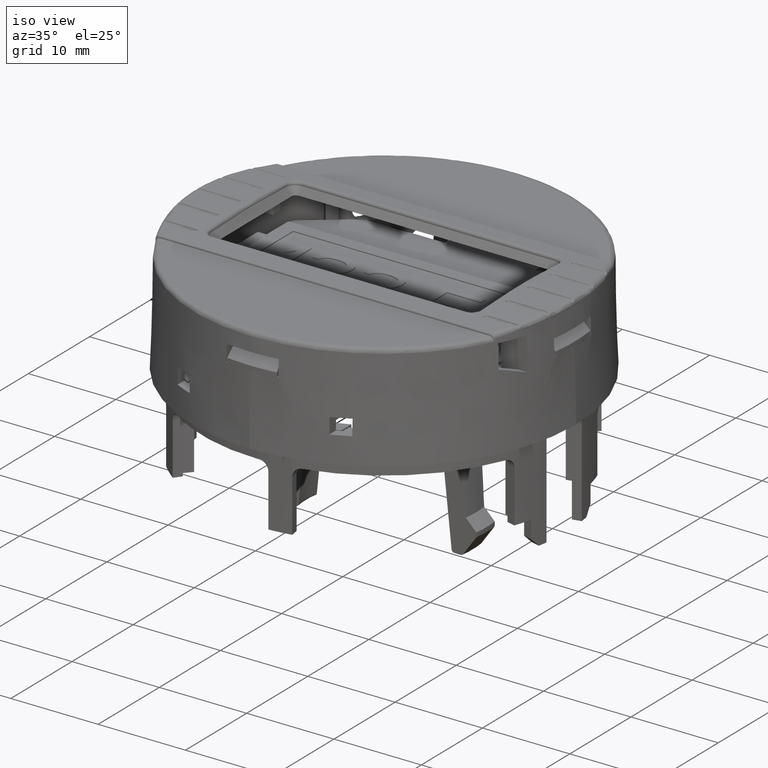
[diagram: clean part render]
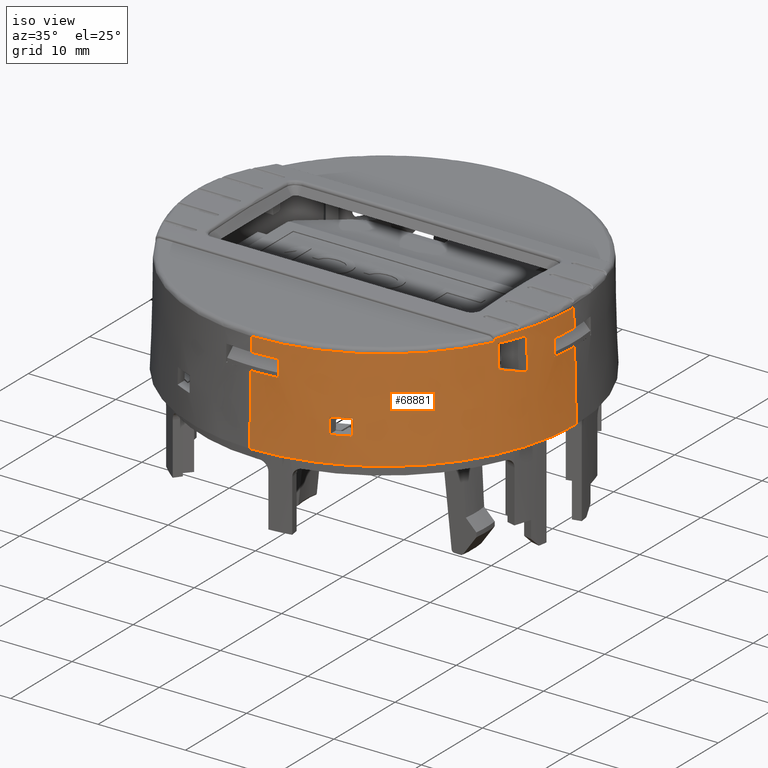
[diagram: same view with one face highlighted and labeled with its STEP entity id]
A machine part, iso view. The second image highlights one B-rep face of the part: STEP entity #68881.
In plain terms, the highlighted conical surface has half-angle 1.5 deg.
Its self-contained STEP definition (entity closure, byte-faithful):
#298 = DIRECTION ( 'NONE',  ( 0.000000000000000000, -0.02617694830786816348, -0.9996573249755573709 ) ) ;
#461 = DIRECTION ( 'NONE',  ( 0.000000000000000000, -1.000000000000000000, 0.000000000000000000 ) ) ;
#463 = ORIENTED_EDGE ( 'NONE', *, *, #21277, .T. ) ;
#844 = CIRCLE ( 'NONE', #18992, 0.8578941979307735943 ) ;
#982 = DIRECTION ( 'NONE',  ( 0.000000000000000000, -1.000000000000000000, 0.000000000000000000 ) ) ;
#1301 = EDGE_CURVE ( 'NONE', #55067, #41847, #41790, .T. ) ;
#1728 = EDGE_CURVE ( 'NONE', #46173, #62673, #34157, .T. ) ;
#2230 = EDGE_CURVE ( 'NONE', #69080, #55067, #12016, .T. ) ;
#2330 = CIRCLE ( 'NONE', #45447, 0.8611932116717716523 ) ;
#2351 = CARTESIAN_POINT ( 'NONE',  ( -0.08858267716535432601, 0.000000000000000000, -0.1181102362205155576 ) ) ;
#2836 = VERTEX_POINT ( 'NONE', #67184 ) ;
#3751 = ORIENTED_EDGE ( 'NONE', *, *, #2230, .T. ) ;
#4068 = DIRECTION ( 'NONE',  ( 0.000000000000000000, 0.000000000000000000, -1.000000000000000000 ) ) ;
#4095 = DIRECTION ( 'NONE',  ( 0.000000000000000000, 0.000000000000000000, -1.000000000000000000 ) ) ;
#5792 = DIRECTION ( 'NONE',  ( -0.000000000000000000, -0.000000000000000000, 1.000000000000000000 ) ) ;
#6148 = VERTEX_POINT ( 'NONE', #68154 ) ;
#6348 = CIRCLE ( 'NONE', #43788, 0.8630489069010846004 ) ;
#6585 = AXIS2_PLACEMENT_3D ( 'NONE', #47058, #26423, #25732 ) ;
#6594 = CARTESIAN_POINT ( 'NONE',  ( 0.7326072168478307001, -0.2500000000000000000, 0.1774838305984697273 ) ) ;
#6595 = CARTESIAN_POINT ( 'NONE',  ( 0.6835820198771253020, -0.3681102362204724532, 0.2913385936943805876 ) ) ;
#7541 = DIRECTION ( 'NONE',  ( -1.000000000000000000, 0.000000000000000000, 1.039306185500294420E-15 ) ) ;
#7786 = DIRECTION ( 'NONE',  ( -0.000000000000000000, -0.000000000000000000, 1.000000000000000000 ) ) ;
#8000 = CARTESIAN_POINT ( 'NONE',  ( 0.3051181102362204856, -0.7659330504873916867, 0.07086614173228346358 ) ) ;
#9064 = ORIENTED_EDGE ( 'NONE', *, *, #14003, .T. ) ;
#9859 = CARTESIAN_POINT ( 'NONE',  ( -0.08858267716535432601, -0.8661417322832716259, -0.1181102362205163486 ) ) ;
#10114 = CARTESIAN_POINT ( 'NONE',  ( 0.02952755905511811330, -0.8477472475106300198, 0.2716535433070866312 ) ) ;
#10355 = DIRECTION ( 'NONE',  ( -0.000000000000000000, -0.000000000000000000, 1.000000000000000000 ) ) ;
#10581 = CARTESIAN_POINT ( 'NONE',  ( -0.08858267716535432601, 0.000000000000000000, -8.741913579725650188E-15 ) ) ;
#10684 = LINE ( 'NONE', #22023, #44705 ) ;
#11056 = CARTESIAN_POINT ( 'NONE',  ( 0.2263779527559055260, -0.8021966087448357818, 0.04724409758846757901 ) ) ;
#11150 = AXIS2_PLACEMENT_3D ( 'NONE', #50535, #56218, #7541 ) ;
#11763 = CARTESIAN_POINT ( 'NONE',  ( 0.2263779527559055260, -0.8015320015003425391, 0.07086614173228346358 ) ) ;
#11872 = EDGE_CURVE ( 'NONE', #21330, #48919, #48435, .T. ) ;
#12016 = B_SPLINE_CURVE_WITH_KNOTS ( 'NONE', 3,
 ( #16818, #38143, #21446, #59136 ),
 .UNSPECIFIED., .F., .F.,
 ( 4, 4 ),
 ( 0.000000000000000000, 1.000000000000000000 ),
 .UNSPECIFIED. ) ;
#12247 = CARTESIAN_POINT ( 'NONE',  ( -0.08858267716535432601, 0.000000000000000000, 0.1968503937007874127 ) ) ;
#13141 = CARTESIAN_POINT ( 'NONE',  ( 0.3051181102362204856, -0.7659330504873916867, 0.07086614173228346358 ) ) ;
#13189 = VERTEX_POINT ( 'NONE', #38024 ) ;
#13220 = EDGE_CURVE ( 'NONE', #33228, #68167, #42900, .T. ) ;
#13513 = CARTESIAN_POINT ( 'NONE',  ( 0.7591645703452499783, -0.1181102362204724532, 0.2716535433070866312 ) ) ;
#13597 = CARTESIAN_POINT ( 'NONE',  ( 0.6979447292441044448, -0.3331396518567230625, 0.3525079614655193261 ) ) ;
#13792 = CARTESIAN_POINT ( 'NONE',  ( 0.7326072168478307001, -0.2500000000000000000, 0.1774838305984697273 ) ) ;
#13885 = ORIENTED_EDGE ( 'NONE', *, *, #34237, .T. ) ;
#14003 = EDGE_CURVE ( 'NONE', #21330, #69080, #16329, .T. ) ;
#14006 =( BOUNDED_CURVE ( )  B_SPLINE_CURVE ( 3, ( #6594, #23969, #22904, #55964 ),
 .UNSPECIFIED., .F., .T. ) 
 B_SPLINE_CURVE_WITH_KNOTS ( ( 4, 4 ),
 ( 1.875423362404314842, 2.023209642091619020 ),
 .UNSPECIFIED. ) 
 CURVE ( )  GEOMETRIC_REPRESENTATION_ITEM ( )  RATIONAL_B_SPLINE_CURVE ( ( 1.000000000000000000, 0.9981807626367893427, 0.9981807626367893427, 1.000000000000000000 ) ) 
 REPRESENTATION_ITEM ( '' )  );
#15032 = DIRECTION ( 'NONE',  ( 0.000000000000000000, -1.000000000000000000, 0.000000000000000000 ) ) ;
#15099 = DIRECTION ( 'NONE',  ( 0.000000000000000000, -1.000000000000000000, 0.000000000000000000 ) ) ;
#15288 = CIRCLE ( 'NONE', #44813, 0.8578941979307735943 ) ;
#15325 = DIRECTION ( 'NONE',  ( 0.000000000000000000, -1.000000000000000000, 0.000000000000000000 ) ) ;
#15725 = ORIENTED_EDGE ( 'NONE', *, *, #30831, .T. ) ;
#15855 = LINE ( 'NONE', #20815, #17729 ) ;
#16329 = B_SPLINE_CURVE_WITH_KNOTS ( 'NONE', 3,
 ( #24592, #13597, #68312, #57286 ),
 .UNSPECIFIED., .F., .F.,
 ( 4, 4 ),
 ( 0.000000000000000000, 1.000000000000000000 ),
 .UNSPECIFIED. ) ;
#16343 = CARTESIAN_POINT ( 'NONE',  ( 0.7285199674823583660, -0.2500000000000000000, 0.3267716535433023428 ) ) ;
#16472 = ORIENTED_EDGE ( 'NONE', *, *, #1728, .T. ) ;
#16556 = B_SPLINE_CURVE_WITH_KNOTS ( 'NONE', 3,
 ( #54559, #55272, #6595, #17588 ),
 .UNSPECIFIED., .F., .F.,
 ( 4, 4 ),
 ( 0.000000000000000000, 0.002701135561170033093 ),
 .UNSPECIFIED. ) ;
#16607 = DIRECTION ( 'NONE',  ( 0.000000000000000000, 0.000000000000000000, 1.000000000000000000 ) ) ;
#16818 = CARTESIAN_POINT ( 'NONE',  ( 0.6763947924669350131, -0.3794819723117039412, 0.3482006492343063253 ) ) ;
#17588 = CARTESIAN_POINT ( 'NONE',  ( 0.6825538774603444603, -0.3681102362204724532, 0.3267716535432976244 ) ) ;
#17729 = VECTOR ( 'NONE', #37523, 39.37007874015748854 ) ;
#18338 = EDGE_LOOP ( 'NONE', ( #24069, #463, #54947, #65157, #57762, #21602, #45176, #37121, #44086, #51554, #67997, #34678, #47001, #50056, #33380, #9064, #3751 ) ) ;
#18992 = AXIS2_PLACEMENT_3D ( 'NONE', #12247, #33190, #34601 ) ;
#20380 = EDGE_CURVE ( 'NONE', #44826, #68167, #47044, .T. ) ;
#20515 = DIRECTION ( 'NONE',  ( 0.000000000000000000, 1.000000000000000000, 0.000000000000000000 ) ) ;
#20815 = CARTESIAN_POINT ( 'NONE',  ( -0.08858267716535432601, -0.8661417322832716259, -0.1181102362205155576 ) ) ;
#20849 = EDGE_CURVE ( 'NONE', #6148, #54433, #10684, .T. ) ;
#21234 = CARTESIAN_POINT ( 'NONE',  ( 0.3051181102362204856, -0.7680189487913287039, -4.370956789862818783E-15 ) ) ;
#21277 = EDGE_CURVE ( 'NONE', #41847, #13189, #26231, .T. ) ;
#21330 = VERTEX_POINT ( 'NONE', #21608 ) ;
#21446 = CARTESIAN_POINT ( 'NONE',  ( 0.6766498611802708174, -0.3794813055315366390, 0.3395075303157877311 ) ) ;
#21602 = ORIENTED_EDGE ( 'NONE', *, *, #49332, .T. ) ;
#21608 = CARTESIAN_POINT ( 'NONE',  ( 0.7068162088862796066, -0.3102653075700074758, 0.3543307086694141850 ) ) ;
#22014 = CARTESIAN_POINT ( 'NONE',  ( -0.08858267716535432601, 0.000000000000000000, -0.1181102362205163486 ) ) ;
#22023 = CARTESIAN_POINT ( 'NONE',  ( 0.7611422353468504376, -0.1181102362204724532, 0.1968503937007874127 ) ) ;
#22072 = EDGE_CURVE ( 'NONE', #46324, #68613, #40990, .T. ) ;
#22904 = CARTESIAN_POINT ( 'NONE',  ( 0.7041912787331328083, -0.3299340627152620997, 0.2065774501308020317 ) ) ;
#23590 = CARTESIAN_POINT ( 'NONE',  ( -0.08858267716535432601, -0.8542724081965282767, 0.3351609635493787431 ) ) ;
#23765 = CARTESIAN_POINT ( 'NONE',  ( 0.7712113382519685256, 1.052943988906874042E-16, 0.1242992909536614204 ) ) ;
#23969 = CARTESIAN_POINT ( 'NONE',  ( 0.7198764976738876165, -0.2904922299192079227, 0.1922217970081323279 ) ) ;
#24014 = CIRCLE ( 'NONE', #31973, 0.8559354085220550745 ) ;
#24069 = ORIENTED_EDGE ( 'NONE', *, *, #1301, .T. ) ;
#24103 = CIRCLE ( 'NONE', #40010, 0.8578941979307735943 ) ;
#24592 = CARTESIAN_POINT ( 'NONE',  ( 0.7068162088862796066, -0.3102653075700074758, 0.3543307086694141850 ) ) ;
#24944 = EDGE_CURVE ( 'NONE', #2836, #41236, #27693, .T. ) ;
#25732 = DIRECTION ( 'NONE',  ( 0.000000000000000000, -1.000000000000000000, 0.000000000000000000 ) ) ;
#26172 = ORIENTED_EDGE ( 'NONE', *, *, #37656, .T. ) ;
#26231 = LINE ( 'NONE', #70338, #69723 ) ;
#26423 = DIRECTION ( 'NONE',  ( -0.000000000000000000, -0.000000000000000000, 1.000000000000000000 ) ) ;
#27693 = CIRCLE ( 'NONE', #58387, 0.8544920900103681882 ) ;
#28572 = VERTEX_POINT ( 'NONE', #46544 ) ;
#28746 = DIRECTION ( 'NONE',  ( 0.000000000000000000, -1.000000000000000000, 0.000000000000000000 ) ) ;
#29127 = AXIS2_PLACEMENT_3D ( 'NONE', #62163, #7786, #29442 ) ;
#29137 = EDGE_CURVE ( 'NONE', #49637, #33228, #15855, .T. ) ;
#29299 = EDGE_CURVE ( 'NONE', #64398, #2836, #16556, .T. ) ;
#29345 = FACE_BOUND ( 'NONE', #31334, .T. ) ;
#29442 = DIRECTION ( 'NONE',  ( -1.000000000000000000, 0.000000000000000000, 1.599872691332938874E-15 ) ) ;
#30831 = EDGE_CURVE ( 'NONE', #33065, #64398, #14006, .T. ) ;
#31334 = EDGE_LOOP ( 'NONE', ( #69710, #26172, #15725, #67838 ) ) ;
#31973 = AXIS2_PLACEMENT_3D ( 'NONE', #69028, #10355, #15325 ) ;
#32069 = CARTESIAN_POINT ( 'NONE',  ( 0.6856371654346082867, -0.3681102362204724532, 0.2204724409448818867 ) ) ;
#32105 = DIRECTION ( 'NONE',  ( 0.000000000000000000, -0.02642902335629438923, -0.9996506923543004852 ) ) ;
#33065 = VERTEX_POINT ( 'NONE', #13792 ) ;
#33190 = DIRECTION ( 'NONE',  ( 0.000000000000000000, 0.000000000000000000, -1.000000000000000000 ) ) ;
#33228 = VERTEX_POINT ( 'NONE', #9859 ) ;
#33380 = ORIENTED_EDGE ( 'NONE', *, *, #11872, .F. ) ;
#34157 = B_SPLINE_CURVE_WITH_KNOTS ( 'NONE', 3,
 ( #13141, #68221, #56132, #40141 ),
 .UNSPECIFIED., .F., .F.,
 ( 4, 4 ),
 ( 2.498965354836999847E-16, 0.001800779573663485169 ),
 .UNSPECIFIED. ) ;
#34237 = EDGE_CURVE ( 'NONE', #62673, #46324, #6348, .T. ) ;
#34499 = VERTEX_POINT ( 'NONE', #53413 ) ;
#34601 = DIRECTION ( 'NONE',  ( 0.000000000000000000, -1.000000000000000000, 0.000000000000000000 ) ) ;
#34678 = ORIENTED_EDGE ( 'NONE', *, *, #20849, .T. ) ;
#35342 = CARTESIAN_POINT ( 'NONE',  ( 0.2263779527559055260, -0.8035254926278071474, -4.370956789862818783E-15 ) ) ;
#35359 = CARTESIAN_POINT ( 'NONE',  ( 0.7619721169755513390, -0.1119776629836216619, 0.1968503937007830829 ) ) ;
#36378 = CARTESIAN_POINT ( 'NONE',  ( 0.7712113382519685256, 3.295638983480271891E-12, 0.1242992909536614204 ) ) ;
#36720 = DIRECTION ( 'NONE',  ( 0.02617694830786819124, 1.003377201574089376E-13, -0.9996573249755573709 ) ) ;
#36742 = CARTESIAN_POINT ( 'NONE',  ( 0.2263779527559055260, -0.8035254926278071474, -4.370956789862818783E-15 ) ) ;
#37082 = CARTESIAN_POINT ( 'NONE',  ( -0.08858267716535432601, 0.000000000000000000, 0.3267716535432971803 ) ) ;
#37121 = ORIENTED_EDGE ( 'NONE', *, *, #13220, .T. ) ;
#37523 = DIRECTION ( 'NONE',  ( 0.000000000000000000, -0.02617694830786816348, -0.9996573249755573709 ) ) ;
#37656 = EDGE_CURVE ( 'NONE', #41236, #33065, #67404, .T. ) ;
#37927 = DIRECTION ( 'NONE',  ( 0.000000000000000000, 0.000000000000000000, -1.000000000000000000 ) ) ;
#38024 = CARTESIAN_POINT ( 'NONE',  ( -0.08858267716535432601, -0.8559354085220539643, 0.2716535433070866312 ) ) ;
#38143 = CARTESIAN_POINT ( 'NONE',  ( 0.6765225797190751456, -0.3794817770631963016, 0.3438540970821959419 ) ) ;
#39129 = VECTOR ( 'NONE', #32105, 39.37007874015748143 ) ;
#39919 = CARTESIAN_POINT ( 'NONE',  ( 0.7775590551180452392, 1.660064624058092648E-12, -0.1181102362205163486 ) ) ;
#39941 = CARTESIAN_POINT ( 'NONE',  ( 0.02952755905511811330, -0.8477472475106043737, 0.2716535433070866312 ) ) ;
#40010 = AXIS2_PLACEMENT_3D ( 'NONE', #55494, #55833, #49467 ) ;
#40040 = CARTESIAN_POINT ( 'NONE',  ( 0.7651877535894252569, 1.045567225230498036E-16, 0.3543307086614134183 ) ) ;
#40141 = CARTESIAN_POINT ( 'NONE',  ( 0.3051181102362204856, -0.7680189487913287039, -4.370956789862818783E-15 ) ) ;
#40280 = EDGE_CURVE ( 'NONE', #13189, #57578, #24014, .T. ) ;
#40990 = B_SPLINE_CURVE_WITH_KNOTS ( 'NONE', 3,
 ( #35342, #57035, #11056, #48748 ),
 .UNSPECIFIED., .F., .F.,
 ( 4, 4 ),
 ( 1.928626539338819068E-17, 0.001800712045352094578 ),
 .UNSPECIFIED. ) ;
#41236 = VERTEX_POINT ( 'NONE', #58571 ) ;
#41790 = CIRCLE ( 'NONE', #11150, 0.8542724081965296090 ) ;
#41847 = VERTEX_POINT ( 'NONE', #23590 ) ;
#42900 = CIRCLE ( 'NONE', #45125, 0.8661417322832716259 ) ;
#43028 = CARTESIAN_POINT ( 'NONE',  ( 0.7312450890774708778, -0.2500000000000000000, 0.2272464461496088717 ) ) ;
#43145 = CARTESIAN_POINT ( 'NONE',  ( -0.08858267716535432601, 0.000000000000000000, 0.1968503937007787252 ) ) ;
#43788 = AXIS2_PLACEMENT_3D ( 'NONE', #10581, #37927, #982 ) ;
#44086 = ORIENTED_EDGE ( 'NONE', *, *, #20380, .F. ) ;
#44705 = VECTOR ( 'NONE', #48019, 39.37007874015748143 ) ;
#44813 = AXIS2_PLACEMENT_3D ( 'NONE', #43145, #4068, #69808 ) ;
#44826 = VERTEX_POINT ( 'NONE', #65602 ) ;
#45125 = AXIS2_PLACEMENT_3D ( 'NONE', #22014, #49395, #28746 ) ;
#45176 = ORIENTED_EDGE ( 'NONE', *, *, #29137, .T. ) ;
#45249 = CARTESIAN_POINT ( 'NONE',  ( 0.6767771557360924284, -0.3794807942219772245, 0.3351609726304688452 ) ) ;
#45447 = AXIS2_PLACEMENT_3D ( 'NONE', #64791, #64446, #15032 ) ;
#45779 = ORIENTED_EDGE ( 'NONE', *, *, #57631, .T. ) ;
#46173 = VERTEX_POINT ( 'NONE', #8000 ) ;
#46324 = VERTEX_POINT ( 'NONE', #36742 ) ;
#46339 = EDGE_CURVE ( 'NONE', #57578, #28572, #68753, .T. ) ;
#46344 = EDGE_CURVE ( 'NONE', #44826, #68089, #15288, .T. ) ;
#46544 = CARTESIAN_POINT ( 'NONE',  ( 0.02952755905511811330, -0.8497249125120157620, 0.1968503937007874127 ) ) ;
#47001 = ORIENTED_EDGE ( 'NONE', *, *, #54740, .T. ) ;
#47044 = LINE ( 'NONE', #36378, #57144 ) ;
#47058 = CARTESIAN_POINT ( 'NONE',  ( -0.08858267716535432601, 0.000000000000000000, 0.2716535433070866312 ) ) ;
#47190 = AXIS2_PLACEMENT_3D ( 'NONE', #2351, #4095, #15099 ) ;
#48019 = DIRECTION ( 'NONE',  ( -0.02642902335629259206, 0.000000000000000000, 0.9996506923543004852 ) ) ;
#48435 = CIRCLE ( 'NONE', #29127, 0.8537704307547795413 ) ;
#48748 = CARTESIAN_POINT ( 'NONE',  ( 0.2263779527559055260, -0.8015320015003425391, 0.07086614173228346358 ) ) ;
#48919 = VERTEX_POINT ( 'NONE', #40040 ) ;
#49332 = EDGE_CURVE ( 'NONE', #58718, #49637, #844, .T. ) ;
#49395 = DIRECTION ( 'NONE',  ( -0.000000000000000000, -0.000000000000000000, 1.000000000000000000 ) ) ;
#49467 = DIRECTION ( 'NONE',  ( 0.000000000000000000, 1.000000000000000000, 0.000000000000000000 ) ) ;
#49637 = VERTEX_POINT ( 'NONE', #70134 ) ;
#50056 = ORIENTED_EDGE ( 'NONE', *, *, #58993, .F. ) ;
#50535 = CARTESIAN_POINT ( 'NONE',  ( -0.08858267716535432601, 0.000000000000000000, 0.3351609635493787431 ) ) ;
#50793 = LINE ( 'NONE', #23765, #60298 ) ;
#51040 = FACE_OUTER_BOUND ( 'NONE', #18338, .T. ) ;
#51139 = DIRECTION ( 'NONE',  ( 0.02617694830786819124, 3.205751595667653461E-18, -0.9996573249755573709 ) ) ;
#51554 = ORIENTED_EDGE ( 'NONE', *, *, #46344, .T. ) ;
#53413 = CARTESIAN_POINT ( 'NONE',  ( 0.7673527313568287989, 1.310273197904427200E-16, 0.2716535433070866312 ) ) ;
#54433 = VERTEX_POINT ( 'NONE', #13513 ) ;
#54559 = CARTESIAN_POINT ( 'NONE',  ( 0.6856371654346082867, -0.3681102362204724532, 0.2204724409448818867 ) ) ;
#54740 = EDGE_CURVE ( 'NONE', #54433, #34499, #67898, .T. ) ;
#54947 = ORIENTED_EDGE ( 'NONE', *, *, #40280, .T. ) ;
#55067 = VERTEX_POINT ( 'NONE', #45249 ) ;
#55222 = CARTESIAN_POINT ( 'NONE',  ( 0.6763947924669350131, -0.3794819723117039412, 0.3482006492343063253 ) ) ;
#55272 = CARTESIAN_POINT ( 'NONE',  ( 0.6846097810231981384, -0.3681102362204724532, 0.2559055227803272436 ) ) ;
#55494 = CARTESIAN_POINT ( 'NONE',  ( -0.08858267716535432601, 0.000000000000000000, 0.1968503937007874127 ) ) ;
#55833 = DIRECTION ( 'NONE',  ( 0.000000000000000000, 0.000000000000000000, 1.000000000000000000 ) ) ;
#55964 = CARTESIAN_POINT ( 'NONE',  ( 0.6856371654346082867, -0.3681102362204724532, 0.2204724409448818867 ) ) ;
#56132 = CARTESIAN_POINT ( 'NONE',  ( 0.3051181102362204856, -0.7673238460926797844, 0.02362205303405816997 ) ) ;
#56218 = DIRECTION ( 'NONE',  ( 0.000000000000000000, 0.000000000000000000, -1.000000000000000000 ) ) ;
#56373 = FACE_BOUND ( 'NONE', #63713, .T. ) ;
#57035 = CARTESIAN_POINT ( 'NONE',  ( 0.2263779527559055260, -0.8028611055139636132, 0.02362205033616873034 ) ) ;
#57065 = EDGE_CURVE ( 'NONE', #58718, #28572, #62448, .T. ) ;
#57144 = VECTOR ( 'NONE', #36720, 39.37007874015748143 ) ;
#57286 = CARTESIAN_POINT ( 'NONE',  ( 0.6763947924669350131, -0.3794819723117039412, 0.3482006492343063253 ) ) ;
#57578 = VERTEX_POINT ( 'NONE', #39941 ) ;
#57631 = EDGE_CURVE ( 'NONE', #68613, #46173, #2330, .T. ) ;
#57762 = ORIENTED_EDGE ( 'NONE', *, *, #57065, .F. ) ;
#58387 = AXIS2_PLACEMENT_3D ( 'NONE', #37082, #5792, #461 ) ;
#58571 = CARTESIAN_POINT ( 'NONE',  ( 0.7285199674823583660, -0.2500000000000000000, 0.3267716535433023428 ) ) ;
#58718 = VERTEX_POINT ( 'NONE', #68622 ) ;
#58993 = EDGE_CURVE ( 'NONE', #48919, #34499, #50793, .T. ) ;
#59136 = CARTESIAN_POINT ( 'NONE',  ( 0.6767771557360924284, -0.3794807942219772245, 0.3351609726304688452 ) ) ;
#59707 = CARTESIAN_POINT ( 'NONE',  ( 0.7326072168478307001, -0.2500000000000000000, 0.1774838305984697273 ) ) ;
#60142 = AXIS2_PLACEMENT_3D ( 'NONE', #64952, #16607, #20515 ) ;
#60298 = VECTOR ( 'NONE', #51139, 39.37007874015748143 ) ;
#60985 = ORIENTED_EDGE ( 'NONE', *, *, #22072, .T. ) ;
#62049 = EDGE_CURVE ( 'NONE', #6148, #68089, #24103, .T. ) ;
#62163 = CARTESIAN_POINT ( 'NONE',  ( -0.08858267716535432601, 0.000000000000000000, 0.3543307086614134183 ) ) ;
#62448 = CIRCLE ( 'NONE', #60142, 0.8578941979307735943 ) ;
#62673 = VERTEX_POINT ( 'NONE', #21234 ) ;
#63713 = EDGE_LOOP ( 'NONE', ( #60985, #45779, #16472, #13885 ) ) ;
#64398 = VERTEX_POINT ( 'NONE', #32069 ) ;
#64446 = DIRECTION ( 'NONE',  ( -0.000000000000000000, -0.000000000000000000, 1.000000000000000000 ) ) ;
#64791 = CARTESIAN_POINT ( 'NONE',  ( -0.08858267716535432601, 0.000000000000000000, 0.07086614173228444891 ) ) ;
#64952 = CARTESIAN_POINT ( 'NONE',  ( -0.08858267716535432601, 0.000000000000000000, 0.1968503937007874127 ) ) ;
#65157 = ORIENTED_EDGE ( 'NONE', *, *, #46339, .T. ) ;
#65602 = CARTESIAN_POINT ( 'NONE',  ( 0.7693115207655472076, 1.644257234223415540E-12, 0.1968503937007874127 ) ) ;
#67184 = CARTESIAN_POINT ( 'NONE',  ( 0.6825538774603444603, -0.3681102362204724532, 0.3267716535432976244 ) ) ;
#67404 = B_SPLINE_CURVE_WITH_KNOTS ( 'NONE', 3,
 ( #16343, #70050, #43028, #59707 ),
 .UNSPECIFIED., .F., .F.,
 ( 4, 4 ),
 ( 9.027231622811332549E-17, 0.003793331592103888535 ),
 .UNSPECIFIED. ) ;
#67838 = ORIENTED_EDGE ( 'NONE', *, *, #29299, .T. ) ;
#67898 = CIRCLE ( 'NONE', #6585, 0.8559354085220550745 ) ;
#67997 = ORIENTED_EDGE ( 'NONE', *, *, #62049, .F. ) ;
#68089 = VERTEX_POINT ( 'NONE', #35359 ) ;
#68154 = CARTESIAN_POINT ( 'NONE',  ( 0.7611422353466614776, -0.1181102362204724532, 0.1968503937007874127 ) ) ;
#68167 = VERTEX_POINT ( 'NONE', #39919 ) ;
#68221 = CARTESIAN_POINT ( 'NONE',  ( 0.3051181102362204856, -0.7666285471936679086, 0.04724410029556372348 ) ) ;
#68312 = CARTESIAN_POINT ( 'NONE',  ( 0.6878461222372929118, -0.3562657273072039610, 0.3504646131945841625 ) ) ;
#68613 = VERTEX_POINT ( 'NONE', #11763 ) ;
#68622 = CARTESIAN_POINT ( 'NONE',  ( 0.02339498581825740289, -0.8505547941409056234, 0.1968503937007874127 ) ) ;
#68753 = LINE ( 'NONE', #10114, #39129 ) ;
#68766 = CONICAL_SURFACE ( 'NONE', #47190, 0.8661417322832716259, 0.02617993877990995241 ) ;
#68881 = ADVANCED_FACE ( 'NONE', ( #56373, #29345, #51040 ), #68766, .T. ) ;
#69028 = CARTESIAN_POINT ( 'NONE',  ( -0.08858267716535432601, 0.000000000000000000, 0.2716535433070866312 ) ) ;
#69080 = VERTEX_POINT ( 'NONE', #55222 ) ;
#69710 = ORIENTED_EDGE ( 'NONE', *, *, #24944, .T. ) ;
#69723 = VECTOR ( 'NONE', #298, 39.37007874015748854 ) ;
#69808 = DIRECTION ( 'NONE',  ( 0.000000000000000000, -1.000000000000000000, 0.000000000000000000 ) ) ;
#70050 = CARTESIAN_POINT ( 'NONE',  ( 0.7298826740662116563, -0.2500000000000000000, 0.2770090538391026813 ) ) ;
#70134 = CARTESIAN_POINT ( 'NONE',  ( -0.08858267716535432601, -0.8578941979307723731, 0.1968503937007874127 ) ) ;
#70338 = CARTESIAN_POINT ( 'NONE',  ( -0.08858267716535432601, -0.8661417322832716259, -0.1181102362205155576 ) ) ;